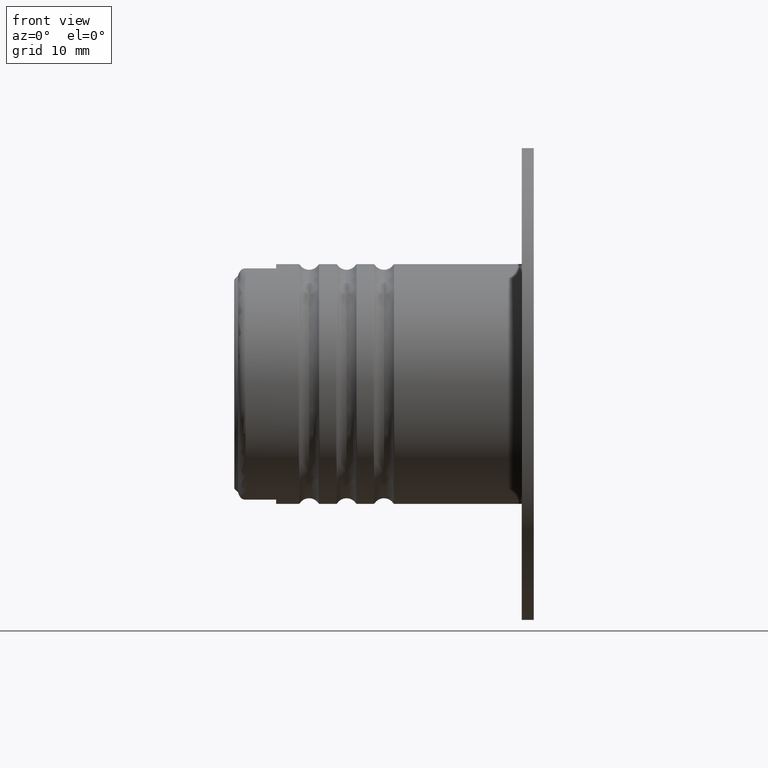
[diagram: clean part render]
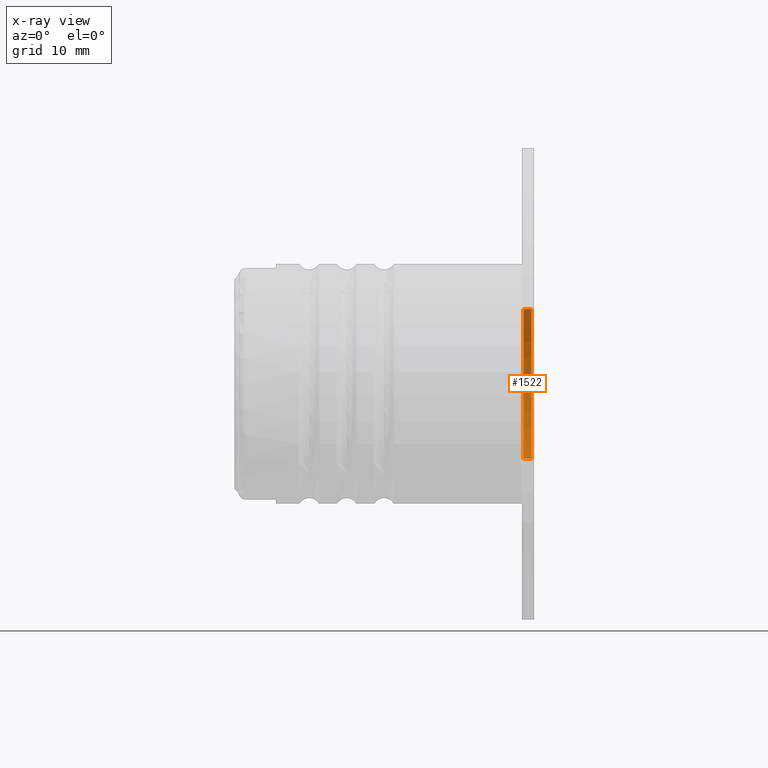
[diagram: x-ray — body ghosted, one internal face saturated and labeled with its STEP entity id]
A machine part, front view, then the same camera in x-ray: the body is ghosted and one INTERNAL B-rep face — a face not visible from any outside direction — is saturated and labeled: STEP entity #1522.
In plain terms, the highlighted cylindrical surface (partial cylindrical patch) has radius 10 mm, axis along (1, 0, 0).
Its self-contained STEP definition (entity closure, byte-faithful):
#12 = DIRECTION ( 'NONE',  ( 1.000000000000000000, -0.0000000000000000000, -0.0000000000000000000 ) ) ;
#988 = ORIENTED_EDGE ( 'NONE', *, *, #4118, .F. ) ;
#1060 = CYLINDRICAL_SURFACE ( 'NONE', #3069, 10.00000000000000000 ) ;
#1189 = LINE ( 'NONE', #4058, #4809 ) ;
#1522 = ADVANCED_FACE ( 'NONE', ( #7093 ), #1060, .T. ) ;
#1765 = CARTESIAN_POINT ( 'NONE',  ( -0.1000000000000000056, 1.224646799147353256E-15, 10.00000000000000000 ) ) ;
#1922 = CARTESIAN_POINT ( 'NONE',  ( -1.199999999999999956, 1.224646799147353256E-15, 10.00000000000000000 ) ) ;
#2176 = DIRECTION ( 'NONE',  ( 0.0000000000000000000, 0.0000000000000000000, -1.000000000000000000 ) ) ;
#2443 = AXIS2_PLACEMENT_3D ( 'NONE', #3964, #6982, #2176 ) ;
#2444 = DIRECTION ( 'NONE',  ( 0.0000000000000000000, 0.0000000000000000000, -1.000000000000000000 ) ) ;
#2621 = VERTEX_POINT ( 'NONE', #1765 ) ;
#2886 = EDGE_CURVE ( 'NONE', #5006, #2621, #6506, .T. ) ;
#2927 = EDGE_CURVE ( 'NONE', #7677, #5006, #4927, .T. ) ;
#3022 = CARTESIAN_POINT ( 'NONE',  ( -0.1000000000000000056, 0.0000000000000000000, 0.0000000000000000000 ) ) ;
#3069 = AXIS2_PLACEMENT_3D ( 'NONE', #5392, #7292, #3687 ) ;
#3687 = DIRECTION ( 'NONE',  ( 0.0000000000000000000, 0.0000000000000000000, -1.000000000000000000 ) ) ;
#3964 = CARTESIAN_POINT ( 'NONE',  ( -1.199999999999999956, 0.0000000000000000000, 0.0000000000000000000 ) ) ;
#4058 = CARTESIAN_POINT ( 'NONE',  ( 0.0000000000000000000, 0.0000000000000000000, -10.00000000000000000 ) ) ;
#4118 = EDGE_CURVE ( 'NONE', #5056, #2621, #5190, .T. ) ;
#4228 = ORIENTED_EDGE ( 'NONE', *, *, #2927, .T. ) ;
#4712 = CARTESIAN_POINT ( 'NONE',  ( -1.199999999999999956, 0.0000000000000000000, -10.00000000000000000 ) ) ;
#4785 = ORIENTED_EDGE ( 'NONE', *, *, #2886, .T. ) ;
#4809 = VECTOR ( 'NONE', #5762, 1000.000000000000000 ) ;
#4871 = CARTESIAN_POINT ( 'NONE',  ( -0.1000000000000000056, 0.0000000000000000000, -10.00000000000000000 ) ) ;
#4927 = CIRCLE ( 'NONE', #2443, 10.00000000000000000 ) ;
#5006 = VERTEX_POINT ( 'NONE', #1922 ) ;
#5056 = VERTEX_POINT ( 'NONE', #4871 ) ;
#5190 = CIRCLE ( 'NONE', #5628, 10.00000000000000000 ) ;
#5306 = VECTOR ( 'NONE', #5667, 1000.000000000000000 ) ;
#5392 = CARTESIAN_POINT ( 'NONE',  ( 0.0000000000000000000, 0.0000000000000000000, 0.0000000000000000000 ) ) ;
#5511 = ORIENTED_EDGE ( 'NONE', *, *, #5800, .F. ) ;
#5620 = CARTESIAN_POINT ( 'NONE',  ( 0.0000000000000000000, 1.224646799147353256E-15, 10.00000000000000000 ) ) ;
#5628 = AXIS2_PLACEMENT_3D ( 'NONE', #3022, #12, #2444 ) ;
#5667 = DIRECTION ( 'NONE',  ( 1.000000000000000000, -0.0000000000000000000, -0.0000000000000000000 ) ) ;
#5762 = DIRECTION ( 'NONE',  ( 1.000000000000000000, -0.0000000000000000000, -0.0000000000000000000 ) ) ;
#5800 = EDGE_CURVE ( 'NONE', #7677, #5056, #1189, .T. ) ;
#6506 = LINE ( 'NONE', #5620, #5306 ) ;
#6738 = EDGE_LOOP ( 'NONE', ( #4228, #4785, #988, #5511 ) ) ;
#6982 = DIRECTION ( 'NONE',  ( 1.000000000000000000, -0.0000000000000000000, -0.0000000000000000000 ) ) ;
#7093 = FACE_OUTER_BOUND ( 'NONE', #6738, .T. ) ;
#7292 = DIRECTION ( 'NONE',  ( 1.000000000000000000, -0.0000000000000000000, -0.0000000000000000000 ) ) ;
#7677 = VERTEX_POINT ( 'NONE', #4712 ) ;